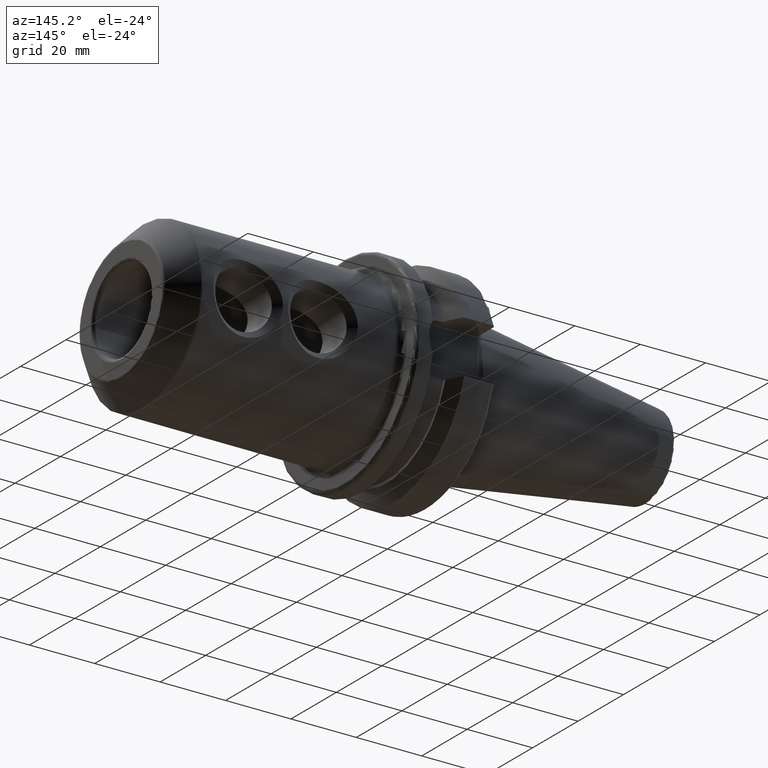
[diagram: clean part render]
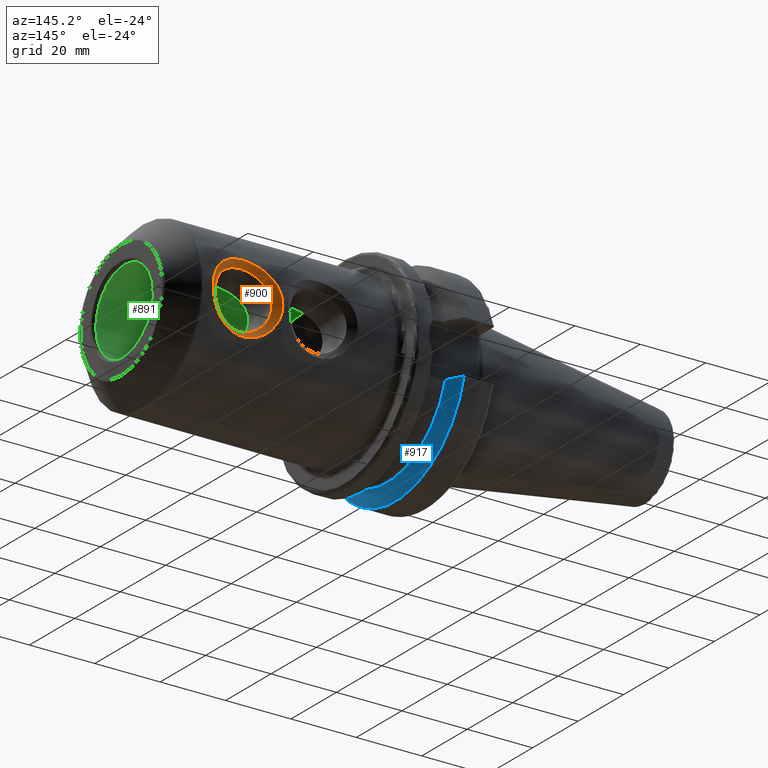
[diagram: same view with three faces highlighted in distinct colors, each labeled with its STEP entity id]
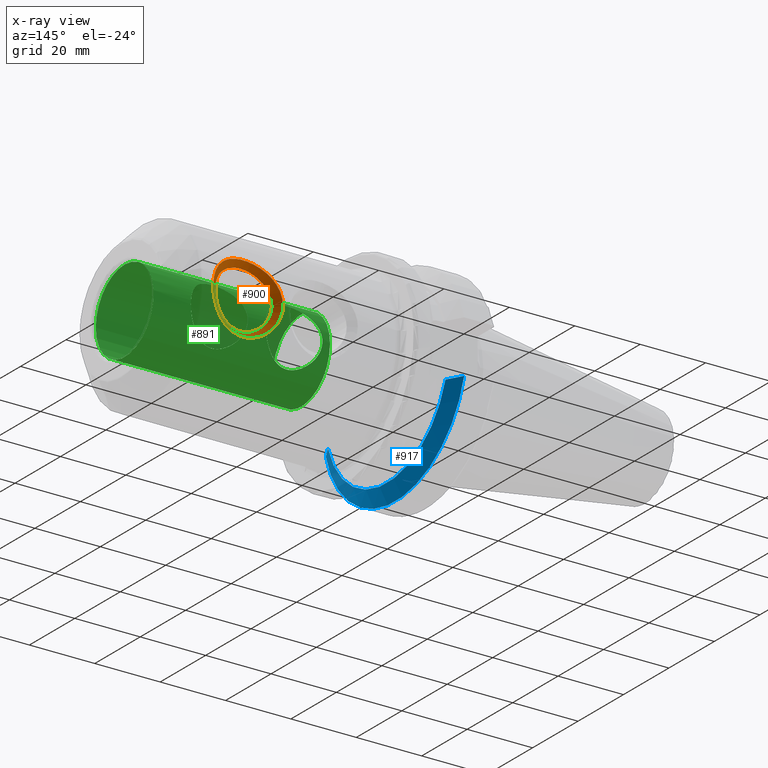
[diagram: x-ray of the same camera — body ghosted, the three highlighted faces saturated]
A machine part, auxiliary view with three faces highlighted in distinct colors.
The next image is the same camera in x-ray (body ghosted, the three faces saturated) — at least one of them is partly hidden behind the body in this view.
Their STEP definitions:

[orange] entity #900 — the highlighted face is a freeform B-spline surface patch.
#20=B_SPLINE_SURFACE_WITH_KNOTS('',3,3,((#1730,#1731,#1732,#1733,#1734,
#1735,#1736,#1737,#1738,#1739,#1740,#1741,#1742,#1743,#1744,#1745,#1746,
#1747,#1748,#1749,#1750,#1751,#1752,#1753,#1754,#1755,#1756,#1757,#1758,
#1759,#1760,#1761,#1762),(#1763,#1764,#1765,#1766,#1767,#1768,#1769,#1770,
#1771,#1772,#1773,#1774,#1775,#1776,#1777,#1778,#1779,#1780,#1781,#1782,
#1783,#1784,#1785,#1786,#1787,#1788,#1789,#1790,#1791,#1792,#1793,#1794,
#1795),(#1796,#1797,#1798,#1799,#1800,#1801,#1802,#1803,#1804,#1805,#1806,
#1807,#1808,#1809,#1810,#1811,#1812,#1813,#1814,#1815,#1816,#1817,#1818,
#1819,#1820,#1821,#1822,#1823,#1824,#1825,#1826,#1827,#1828),(#1829,#1830,
#1831,#1832,#1833,#1834,#1835,#1836,#1837,#1838,#1839,#1840,#1841,#1842,
#1843,#1844,#1845,#1846,#1847,#1848,#1849,#1850,#1851,#1852,#1853,#1854,
#1855,#1856,#1857,#1858,#1859,#1860,#1861)),.UNSPECIFIED.,.F.,.T.,.F.,(4,
4),(4,1,1,1,1,1,1,1,1,1,1,1,1,1,1,1,1,1,1,1,1,1,1,1,1,1,1,1,1,1,4),(0.,
1.),(3.94966474206138,4.13774401549287,4.32582328892437,4.51390256235586,
4.70198183578736,4.89006110921885,5.07814038265035,5.45429892951333,5.70507129408866,
5.95584365866399,5.9871902042359,6.08122984095165,6.20661602323931,6.45738838781464,
6.52008147895847,6.70816075238996,6.95893311696529,7.20970548154061,7.2880718454704,
7.33509166382828,7.46047784611594,7.71125021069127,7.83663639297893,7.96202257526659,
8.21279493984192,8.46356730441724,8.65164657784874,8.69866639620661,8.83972585128023,
9.02780512471173,9.21588439814322),.UNSPECIFIED.);
#34=B_SPLINE_CURVE_WITH_KNOTS('',3,(#1481,#1482,#1483,#1484,#1485,#1486,
#1487,#1488,#1489,#1490,#1491,#1492,#1493,#1494,#1495,#1496,#1497,#1498,
#1499,#1500,#1501,#1502,#1503,#1504,#1505,#1506,#1507,#1508,#1509,#1510,
#1511,#1512,#1513),.UNSPECIFIED.,.T.,.F.,(4,1,1,1,1,1,1,1,1,1,1,1,1,1,1,
1,1,1,1,1,1,1,1,1,1,1,1,1,1,1,4),(-9.21588439814322,-9.02780512471173,-8.83972585128023,
-8.69866639620661,-8.65164657784874,-8.46356730441724,-8.21279493984192,
-7.96202257526659,-7.83663639297893,-7.71125021069127,-7.46047784611594,
-7.33509166382828,-7.2880718454704,-7.20970548154061,-6.95893311696529,
-6.70816075238996,-6.52008147895847,-6.45738838781464,-6.20661602323931,
-6.08122984095165,-5.9871902042359,-5.95584365866399,-5.70507129408866,
-5.45429892951333,-5.07814038265035,-4.89006110921885,-4.70198183578736,
-4.51390256235586,-4.32582328892437,-4.13774401549287,-3.94966474206138),
 .UNSPECIFIED.);
#37=B_SPLINE_CURVE_WITH_KNOTS('',3,(#1864,#1865,#1866,#1867,#1868,#1869,
#1870,#1871,#1872,#1873,#1874,#1875,#1876,#1877,#1878,#1879,#1880,#1881,
#1882,#1883,#1884,#1885,#1886,#1887,#1888,#1889,#1890,#1891,#1892,#1893,
#1894,#1895,#1896),.UNSPECIFIED.,.T.,.F.,(4,1,1,1,1,1,1,1,1,1,1,1,1,1,1,
1,1,1,1,1,1,1,1,1,1,1,1,1,1,1,4),(3.94966474206138,4.13774401549287,4.32582328892437,
4.51390256235586,4.70198183578736,4.89006110921885,5.07814038265035,5.45429892951333,
5.70507129408866,5.95584365866399,5.9871902042359,6.08122984095165,6.20661602323931,
6.45738838781464,6.52008147895847,6.70816075238996,6.95893311696529,7.20970548154061,
7.2880718454704,7.33509166382828,7.46047784611594,7.71125021069127,7.83663639297893,
7.96202257526659,8.21279493984192,8.46356730441724,8.65164657784874,8.69866639620661,
8.83972585128023,9.02780512471173,9.21588439814322),.UNSPECIFIED.);
#58=LINE('',#1863,#105);
#105=VECTOR('',#1148,10.);
#204=FACE_OUTER_BOUND('',#265,.T.);
#265=EDGE_LOOP('',(#662,#663,#664,#665));
#395=VERTEX_POINT('',#1480);
#400=VERTEX_POINT('',#1862);
#491=EDGE_CURVE('',#395,#395,#34,.T.);
#499=EDGE_CURVE('',#395,#400,#58,.T.);
#500=EDGE_CURVE('',#400,#400,#37,.T.);
#662=ORIENTED_EDGE('',*,*,#499,.T.);
#663=ORIENTED_EDGE('',*,*,#500,.T.);
#664=ORIENTED_EDGE('',*,*,#499,.F.);
#665=ORIENTED_EDGE('',*,*,#491,.T.);
#900=ADVANCED_FACE('',(#204),#20,.T.);
#1148=DIRECTION('',(-0.707106781186546,-0.707106781186549,-4.9065389333868E-16));
#1480=CARTESIAN_POINT('',(84.8114,25.4,-7.21644966006352E-15));
#1481=CARTESIAN_POINT('Ctrl Pts',(84.8114,25.4,-7.21644966006352E-15));
#1482=CARTESIAN_POINT('Ctrl Pts',(84.8114,25.4,-0.771695247790118));
#1483=CARTESIAN_POINT('Ctrl Pts',(84.6401082566162,25.3271419450865,-2.37188038966957));
#1484=CARTESIAN_POINT('Ctrl Pts',(83.8944419594493,25.025289546063,-4.4880340040886));
#1485=CARTESIAN_POINT('Ctrl Pts',(83.0717138144954,24.7224200350604,-5.85722545037003));
#1486=CARTESIAN_POINT('Ctrl Pts',(82.1206191403792,24.3999453593658,-7.09293610328174));
#1487=CARTESIAN_POINT('Ctrl Pts',(80.7492033204407,23.976515653698,-8.44816226730065));
#1488=CARTESIAN_POINT('Ctrl Pts',(78.1600208106327,23.3839036047476,-9.94592933594146));
#1489=CARTESIAN_POINT('Ctrl Pts',(75.4524176520388,23.1156624855101,-10.5239449901476));
#1490=CARTESIAN_POINT('Ctrl Pts',(73.3713169364178,23.1180516912525,-10.5226646352614));
#1491=CARTESIAN_POINT('Ctrl Pts',(71.2232432814177,23.2544372922078,-10.2201076934102));
#1492=CARTESIAN_POINT('Ctrl Pts',(69.1662378337778,23.5975795939128,-9.4292276673494));
#1493=CARTESIAN_POINT('Ctrl Pts',(67.6911204406919,23.9629747313447,-8.43315894931356));
#1494=CARTESIAN_POINT('Ctrl Pts',(66.902359197366,24.183141145421,-7.77424506743996));
#1495=CARTESIAN_POINT('Ctrl Pts',(65.8288751479572,24.5057279498518,-6.7365406029634));
#1496=CARTESIAN_POINT('Ctrl Pts',(64.4041325493698,25.0188333118163,-4.72781676020789));
#1497=CARTESIAN_POINT('Ctrl Pts',(63.5213136589885,25.3865351150892,-1.82030760395837));
#1498=CARTESIAN_POINT('Ctrl Pts',(63.4508922396882,25.4155067959102,0.255220708889596));
#1499=CARTESIAN_POINT('Ctrl Pts',(63.6789940828855,25.3206375754429,2.35413768291682));
#1500=CARTESIAN_POINT('Ctrl Pts',(64.2463349183342,25.0851095317436,4.19664956010108));
#1501=CARTESIAN_POINT('Ctrl Pts',(65.2570141865083,24.7118166525908,5.91037741934658));
#1502=CARTESIAN_POINT('Ctrl Pts',(65.8996472621856,24.4944452054655,6.73134388762522));
#1503=CARTESIAN_POINT('Ctrl Pts',(66.9179681109717,24.1713636750482,7.84763239856454));
#1504=CARTESIAN_POINT('Ctrl Pts',(68.640945815733,23.6847220324185,9.23080671879955));
#1505=CARTESIAN_POINT('Ctrl Pts',(72.2752901305575,23.0811789073798,10.6116187057798));
#1506=CARTESIAN_POINT('Ctrl Pts',(75.752923758322,23.0849601041514,10.6005816187571));
#1507=CARTESIAN_POINT('Ctrl Pts',(78.8866060785757,23.544443997602,9.55593775184478));
#1508=CARTESIAN_POINT('Ctrl Pts',(80.9228001022128,24.0310604127738,8.26972084310511));
#1509=CARTESIAN_POINT('Ctrl Pts',(82.5244015609034,24.5237571216613,6.70048195353835));
#1510=CARTESIAN_POINT('Ctrl Pts',(83.8310825604845,24.9988741834674,4.67910679421235));
#1511=CARTESIAN_POINT('Ctrl Pts',(84.6373904624804,25.3264864820362,2.3728249188008));
#1512=CARTESIAN_POINT('Ctrl Pts',(84.8114,25.4,0.771695247789983));
#1513=CARTESIAN_POINT('Ctrl Pts',(84.8114,25.4,1.66533453693773E-15));
#1730=CARTESIAN_POINT('Ctrl Pts',(84.8114,25.4,1.66533453693773E-15));
#1731=CARTESIAN_POINT('Ctrl Pts',(84.8114,25.4,0.771695247789983));
#1732=CARTESIAN_POINT('Ctrl Pts',(84.6373904624804,25.3264864820362,2.3728249188008));
#1733=CARTESIAN_POINT('Ctrl Pts',(83.8310825604845,24.9988741834674,4.67910679421235));
#1734=CARTESIAN_POINT('Ctrl Pts',(82.5244015609034,24.5237571216613,6.70048195353835));
#1735=CARTESIAN_POINT('Ctrl Pts',(80.9228001022128,24.0310604127738,8.26972084310511));
#1736=CARTESIAN_POINT('Ctrl Pts',(78.8866060785757,23.544443997602,9.55593775184478));
#1737=CARTESIAN_POINT('Ctrl Pts',(75.752923758322,23.0849601041514,10.6005816187571));
#1738=CARTESIAN_POINT('Ctrl Pts',(72.2752901305575,23.0811789073798,10.6116187057798));
#1739=CARTESIAN_POINT('Ctrl Pts',(68.640945815733,23.6847220324185,9.23080671879955));
#1740=CARTESIAN_POINT('Ctrl Pts',(66.9179681109717,24.1713636750482,7.84763239856454));
#1741=CARTESIAN_POINT('Ctrl Pts',(65.8996472621856,24.4944452054655,6.73134388762522));
#1742=CARTESIAN_POINT('Ctrl Pts',(65.2570141865083,24.7118166525908,5.91037741934658));
#1743=CARTESIAN_POINT('Ctrl Pts',(64.2463349183342,25.0851095317436,4.19664956010108));
#1744=CARTESIAN_POINT('Ctrl Pts',(63.6789940828855,25.3206375754429,2.35413768291682));
#1745=CARTESIAN_POINT('Ctrl Pts',(63.4508922396882,25.4155067959102,0.255220708889596));
#1746=CARTESIAN_POINT('Ctrl Pts',(63.5213136589885,25.3865351150892,-1.82030760395837));
#1747=CARTESIAN_POINT('Ctrl Pts',(64.4041325493698,25.0188333118163,-4.72781676020789));
#1748=CARTESIAN_POINT('Ctrl Pts',(65.8288751479572,24.5057279498518,-6.7365406029634));
#1749=CARTESIAN_POINT('Ctrl Pts',(66.902359197366,24.183141145421,-7.77424506743996));
#1750=CARTESIAN_POINT('Ctrl Pts',(67.6911204406919,23.9629747313447,-8.43315894931356));
#1751=CARTESIAN_POINT('Ctrl Pts',(69.1662378337778,23.5975795939128,-9.4292276673494));
#1752=CARTESIAN_POINT('Ctrl Pts',(71.2232432814177,23.2544372922078,-10.2201076934102));
#1753=CARTESIAN_POINT('Ctrl Pts',(73.3713169364178,23.1180516912525,-10.5226646352614));
#1754=CARTESIAN_POINT('Ctrl Pts',(75.4524176520388,23.1156624855101,-10.5239449901476));
#1755=CARTESIAN_POINT('Ctrl Pts',(78.1600208106327,23.3839036047476,-9.94592933594146));
#1756=CARTESIAN_POINT('Ctrl Pts',(80.7492033204407,23.976515653698,-8.44816226730065));
#1757=CARTESIAN_POINT('Ctrl Pts',(82.1206191403792,24.3999453593658,-7.09293610328174));
#1758=CARTESIAN_POINT('Ctrl Pts',(83.0717138144954,24.7224200350604,-5.85722545037003));
#1759=CARTESIAN_POINT('Ctrl Pts',(83.8944419594493,25.025289546063,-4.4880340040886));
#1760=CARTESIAN_POINT('Ctrl Pts',(84.6401082566162,25.3271419450865,-2.37188038966957));
#1761=CARTESIAN_POINT('Ctrl Pts',(84.8114,25.4,-0.771695247790118));
#1762=CARTESIAN_POINT('Ctrl Pts',(84.8114,25.4,-7.21644966006352E-15));
#1763=CARTESIAN_POINT('Ctrl Pts',(84.1447333333333,24.7333333333333,1.20274161001059E-15));
#1764=CARTESIAN_POINT('Ctrl Pts',(84.1447333333333,24.7333333333333,0.706985589440789));
#1765=CARTESIAN_POINT('Ctrl Pts',(83.9889164542193,24.6694984481956,2.17387024774319));
#1766=CARTESIAN_POINT('Ctrl Pts',(83.2622798849475,24.3835319341697,4.30511998819473));
#1767=CARTESIAN_POINT('Ctrl Pts',(82.0678457020461,23.9646325224039,6.20290781905389));
#1768=CARTESIAN_POINT('Ctrl Pts',(80.5824519440376,23.5259528431179,7.70200006740606));
#1769=CARTESIAN_POINT('Ctrl Pts',(78.6683040403023,23.0891780323264,8.95063169503903));
#1770=CARTESIAN_POINT('Ctrl Pts',(75.6881559737288,22.6737472196897,9.98182148221185));
#1771=CARTESIAN_POINT('Ctrl Pts',(72.3507224652724,22.67038793601,9.99239168436786));
#1772=CARTESIAN_POINT('Ctrl Pts',(68.899028808134,23.2158578978369,8.63050812693269));
#1773=CARTESIAN_POINT('Ctrl Pts',(67.2911078730497,23.6510829666397,7.29715642533606));
#1774=CARTESIAN_POINT('Ctrl Pts',(66.3493123957151,23.9380228062768,6.23648723136024));
#1775=CARTESIAN_POINT('Ctrl Pts',(65.7578608150451,24.1305179667266,5.46066892950722));
#1776=CARTESIAN_POINT('Ctrl Pts',(64.8358729867371,24.4591269310092,3.85650587613041));
#1777=CARTESIAN_POINT('Ctrl Pts',(64.3260837480515,24.6643219538263,2.1579262078191));
#1778=CARTESIAN_POINT('Ctrl Pts',(64.121375466645,24.7468270205468,0.23332173322729));
#1779=CARTESIAN_POINT('Ctrl Pts',(64.1846069944514,24.7216582382555,-1.66607013698007));
#1780=CARTESIAN_POINT('Ctrl Pts',(64.9773165249302,24.4015022878749,-4.34584937196189));
#1781=CARTESIAN_POINT('Ctrl Pts',(66.281344514749,23.9485556441258,-6.23844686053119));
#1782=CARTESIAN_POINT('Ctrl Pts',(67.2783293100335,23.6611889931397,-7.22955936703753));
#1783=CARTESIAN_POINT('Ctrl Pts',(68.0139537328147,23.4646178129081,-7.86216819629985));
#1784=CARTESIAN_POINT('Ctrl Pts',(69.3979578003098,23.1370521897708,-8.82638444694205));
#1785=CARTESIAN_POINT('Ctrl Pts',(71.3514212639862,22.8270906113237,-9.605610220552));
#1786=CARTESIAN_POINT('Ctrl Pts',(73.4047990475314,22.7036046724471,-9.90525628366688));
#1787=CARTESIAN_POINT('Ctrl Pts',(75.3964379768674,22.7013742189176,-9.90699190718658));
#1788=CARTESIAN_POINT('Ctrl Pts',(77.9826486975009,22.9445172225667,-9.33258282243157));
#1789=CARTESIAN_POINT('Ctrl Pts',(80.4218616557574,23.4774966339374,-7.87201026086188));
#1790=CARTESIAN_POINT('Ctrl Pts',(81.6932258386579,23.854356345432,-6.57799351481316));
#1791=CARTESIAN_POINT('Ctrl Pts',(82.5682733717007,24.1398165565792,-5.41108628932577));
#1792=CARTESIAN_POINT('Ctrl Pts',(83.319164534894,24.4065481820072,-4.12872256788278));
#1793=CARTESIAN_POINT('Ctrl Pts',(83.9915188561255,24.6701005937367,-2.17287216367464));
#1794=CARTESIAN_POINT('Ctrl Pts',(84.1447333333333,24.7333333333333,-0.706985589440865));
#1795=CARTESIAN_POINT('Ctrl Pts',(84.1447333333333,24.7333333333333,-6.10622663543836E-15));
#1796=CARTESIAN_POINT('Ctrl Pts',(83.4780666666667,24.0666666666667,7.40148683083438E-16));
#1797=CARTESIAN_POINT('Ctrl Pts',(83.4780666666667,24.0666666666667,0.642275931091596));
#1798=CARTESIAN_POINT('Ctrl Pts',(83.3404424459581,24.0125104143551,1.97491557668557));
#1799=CARTESIAN_POINT('Ctrl Pts',(82.6934772094106,23.7681896848721,3.93113318217711));
#1800=CARTESIAN_POINT('Ctrl Pts',(81.6112898431888,23.4055079231464,5.70533368456943));
#1801=CARTESIAN_POINT('Ctrl Pts',(80.2421037858623,23.020845273462,7.13427929170701));
#1802=CARTESIAN_POINT('Ctrl Pts',(78.4500020020289,22.6339120670508,8.34532563823329));
#1803=CARTESIAN_POINT('Ctrl Pts',(75.6233881891357,22.262534335228,9.36306134566663));
#1804=CARTESIAN_POINT('Ctrl Pts',(72.4261547999872,22.2595969646403,9.37316466295593));
#1805=CARTESIAN_POINT('Ctrl Pts',(69.1571118005349,22.7469937632552,8.03020953506582));
#1806=CARTESIAN_POINT('Ctrl Pts',(67.6642476351277,23.1308022582313,6.74668045210757));
#1807=CARTESIAN_POINT('Ctrl Pts',(66.7989775292446,23.3816004070881,5.74163057509527));
#1808=CARTESIAN_POINT('Ctrl Pts',(66.2587074435819,23.5492192808623,5.01096043966787));
#1809=CARTESIAN_POINT('Ctrl Pts',(65.42541105514,23.8331443302748,3.51636219215974));
#1810=CARTESIAN_POINT('Ctrl Pts',(64.9731734132176,24.0080063322096,1.96171473272139));
#1811=CARTESIAN_POINT('Ctrl Pts',(64.7918586936018,24.0781472451834,0.211422757564986));
#1812=CARTESIAN_POINT('Ctrl Pts',(64.8479003299145,24.0567813614217,-1.51183267000177));
#1813=CARTESIAN_POINT('Ctrl Pts',(65.5505005004906,23.7841712639336,-3.96388198371588));
#1814=CARTESIAN_POINT('Ctrl Pts',(66.7338138815409,23.3913833383997,-5.74035311809898));
#1815=CARTESIAN_POINT('Ctrl Pts',(67.654299422701,23.1392368408585,-6.68487366663509));
#1816=CARTESIAN_POINT('Ctrl Pts',(68.3367870249375,22.9662608944715,-7.29117744328614));
#1817=CARTESIAN_POINT('Ctrl Pts',(69.6296777668418,22.6765247856288,-8.22354122653469));
#1818=CARTESIAN_POINT('Ctrl Pts',(71.4795992465547,22.3997439304396,-8.99111274769384));
#1819=CARTESIAN_POINT('Ctrl Pts',(73.4382811586449,22.2891576536418,-9.28784793207233));
#1820=CARTESIAN_POINT('Ctrl Pts',(75.340458301696,22.2870859523252,-9.29003882422558));
#1821=CARTESIAN_POINT('Ctrl Pts',(77.8052765843692,22.5051308403859,-8.71923630892168));
#1822=CARTESIAN_POINT('Ctrl Pts',(80.0945199910741,22.9784776141768,-7.29585825442311));
#1823=CARTESIAN_POINT('Ctrl Pts',(81.2658325369366,23.3087673314981,-6.06305092634457));
#1824=CARTESIAN_POINT('Ctrl Pts',(82.064832928906,23.557213078098,-4.96494712828151));
#1825=CARTESIAN_POINT('Ctrl Pts',(82.7438871103386,23.7878068179513,-3.76941113167697));
#1826=CARTESIAN_POINT('Ctrl Pts',(83.3429294556348,24.0130592423868,-1.9738639376797));
#1827=CARTESIAN_POINT('Ctrl Pts',(83.4780666666667,24.0666666666667,-0.642275931091618));
#1828=CARTESIAN_POINT('Ctrl Pts',(83.4780666666667,24.0666666666667,-4.9960036108132E-15));
#1829=CARTESIAN_POINT('Ctrl Pts',(82.8114,23.4,2.77555756156289E-16));
#1830=CARTESIAN_POINT('Ctrl Pts',(82.8114,23.4,0.577566272742402));
#1831=CARTESIAN_POINT('Ctrl Pts',(82.6919684376969,23.3555223805146,1.77596090562796));
#1832=CARTESIAN_POINT('Ctrl Pts',(82.1246745338737,23.1528474355745,3.55714637615949));
#1833=CARTESIAN_POINT('Ctrl Pts',(81.1547339843315,22.846383323889,5.20775955008497));
#1834=CARTESIAN_POINT('Ctrl Pts',(79.9017556276871,22.515737703806,6.56655851600796));
#1835=CARTESIAN_POINT('Ctrl Pts',(78.2316999637554,22.1786461017752,7.74001958142753));
#1836=CARTESIAN_POINT('Ctrl Pts',(75.5586204045425,21.8513214507663,8.74430120912142));
#1837=CARTESIAN_POINT('Ctrl Pts',(72.5015871347021,21.8488059932705,8.75393764154399));
#1838=CARTESIAN_POINT('Ctrl Pts',(69.4151947929359,22.2781296286735,7.42991094319896));
#1839=CARTESIAN_POINT('Ctrl Pts',(68.0373873972058,22.6105215498228,6.19620447887909));
#1840=CARTESIAN_POINT('Ctrl Pts',(67.2486426627742,22.8251780078994,5.24677391883029));
#1841=CARTESIAN_POINT('Ctrl Pts',(66.7595540721187,22.9679205949981,4.56125194982851));
#1842=CARTESIAN_POINT('Ctrl Pts',(66.014949123543,23.2071617295404,3.17621850818906));
#1843=CARTESIAN_POINT('Ctrl Pts',(65.6202630783837,23.351690710593,1.76550325762367));
#1844=CARTESIAN_POINT('Ctrl Pts',(65.4623419205586,23.40946746982,0.18952378190268));
#1845=CARTESIAN_POINT('Ctrl Pts',(65.5111936653775,23.391904484588,-1.35759520302346));
#1846=CARTESIAN_POINT('Ctrl Pts',(66.123684476051,23.1668402399923,-3.58191459546988));
#1847=CARTESIAN_POINT('Ctrl Pts',(67.1862832483327,22.8342110326736,-5.24225937566676));
#1848=CARTESIAN_POINT('Ctrl Pts',(68.0302695353686,22.6172846885772,-6.14018796623265));
#1849=CARTESIAN_POINT('Ctrl Pts',(68.6596203170603,22.4679039760349,-6.72018669027242));
#1850=CARTESIAN_POINT('Ctrl Pts',(69.8613977333738,22.2159973814869,-7.62069800612734));
#1851=CARTESIAN_POINT('Ctrl Pts',(71.6077772291232,21.9723972495555,-8.37661527483568));
#1852=CARTESIAN_POINT('Ctrl Pts',(73.4717632697585,21.8747106348365,-8.67043958047778));
#1853=CARTESIAN_POINT('Ctrl Pts',(75.2844786265246,21.8727976857328,-8.67308574126457));
#1854=CARTESIAN_POINT('Ctrl Pts',(77.6279044712373,22.0657444582051,-8.1058897954118));
#1855=CARTESIAN_POINT('Ctrl Pts',(79.7671783263908,22.4794585944162,-6.71970624798434));
#1856=CARTESIAN_POINT('Ctrl Pts',(80.8384392352152,22.7631783175642,-5.54810833787598));
#1857=CARTESIAN_POINT('Ctrl Pts',(81.5613924861112,22.9746095996168,-4.51880796723725));
#1858=CARTESIAN_POINT('Ctrl Pts',(82.1686096857833,23.1690654538955,-3.41009969547115));
#1859=CARTESIAN_POINT('Ctrl Pts',(82.6943400551442,23.3560178910369,-1.77485571168477));
#1860=CARTESIAN_POINT('Ctrl Pts',(82.8114,23.4,-0.577566272742364));
#1861=CARTESIAN_POINT('Ctrl Pts',(82.8114,23.4,-3.88578058618805E-15));
#1862=CARTESIAN_POINT('',(82.8114,23.4,2.77555756156289E-16));
#1863=CARTESIAN_POINT('',(84.8114,25.4,1.66533453693773E-15));
#1864=CARTESIAN_POINT('Ctrl Pts',(82.8114,23.4,2.77555756156289E-16));
#1865=CARTESIAN_POINT('Ctrl Pts',(82.8114,23.4,0.577566272742402));
#1866=CARTESIAN_POINT('Ctrl Pts',(82.6919684376969,23.3555223805146,1.77596090562796));
#1867=CARTESIAN_POINT('Ctrl Pts',(82.1246745338737,23.1528474355745,3.55714637615949));
#1868=CARTESIAN_POINT('Ctrl Pts',(81.1547339843315,22.846383323889,5.20775955008497));
#1869=CARTESIAN_POINT('Ctrl Pts',(79.9017556276871,22.515737703806,6.56655851600796));
#1870=CARTESIAN_POINT('Ctrl Pts',(78.2316999637554,22.1786461017752,7.74001958142753));
#1871=CARTESIAN_POINT('Ctrl Pts',(75.5586204045425,21.8513214507663,8.74430120912142));
#1872=CARTESIAN_POINT('Ctrl Pts',(72.5015871347021,21.8488059932705,8.75393764154399));
#1873=CARTESIAN_POINT('Ctrl Pts',(69.4151947929359,22.2781296286735,7.42991094319896));
#1874=CARTESIAN_POINT('Ctrl Pts',(68.0373873972058,22.6105215498228,6.19620447887909));
#1875=CARTESIAN_POINT('Ctrl Pts',(67.2486426627742,22.8251780078994,5.24677391883029));
#1876=CARTESIAN_POINT('Ctrl Pts',(66.7595540721187,22.9679205949981,4.56125194982851));
#1877=CARTESIAN_POINT('Ctrl Pts',(66.014949123543,23.2071617295404,3.17621850818906));
#1878=CARTESIAN_POINT('Ctrl Pts',(65.6202630783837,23.351690710593,1.76550325762367));
#1879=CARTESIAN_POINT('Ctrl Pts',(65.4623419205586,23.40946746982,0.18952378190268));
#1880=CARTESIAN_POINT('Ctrl Pts',(65.5111936653775,23.391904484588,-1.35759520302346));
#1881=CARTESIAN_POINT('Ctrl Pts',(66.123684476051,23.1668402399923,-3.58191459546988));
#1882=CARTESIAN_POINT('Ctrl Pts',(67.1862832483327,22.8342110326736,-5.24225937566676));
#1883=CARTESIAN_POINT('Ctrl Pts',(68.0302695353686,22.6172846885772,-6.14018796623265));
#1884=CARTESIAN_POINT('Ctrl Pts',(68.6596203170603,22.4679039760349,-6.72018669027242));
#1885=CARTESIAN_POINT('Ctrl Pts',(69.8613977333738,22.2159973814869,-7.62069800612734));
#1886=CARTESIAN_POINT('Ctrl Pts',(71.6077772291232,21.9723972495555,-8.37661527483568));
#1887=CARTESIAN_POINT('Ctrl Pts',(73.4717632697585,21.8747106348365,-8.67043958047778));
#1888=CARTESIAN_POINT('Ctrl Pts',(75.2844786265246,21.8727976857328,-8.67308574126457));
#1889=CARTESIAN_POINT('Ctrl Pts',(77.6279044712373,22.0657444582051,-8.1058897954118));
#1890=CARTESIAN_POINT('Ctrl Pts',(79.7671783263908,22.4794585944162,-6.71970624798434));
#1891=CARTESIAN_POINT('Ctrl Pts',(80.8384392352152,22.7631783175642,-5.54810833787598));
#1892=CARTESIAN_POINT('Ctrl Pts',(81.5613924861112,22.9746095996168,-4.51880796723725));
#1893=CARTESIAN_POINT('Ctrl Pts',(82.1686096857833,23.1690654538955,-3.41009969547115));
#1894=CARTESIAN_POINT('Ctrl Pts',(82.6943400551442,23.3560178910369,-1.77485571168477));
#1895=CARTESIAN_POINT('Ctrl Pts',(82.8114,23.4,-0.577566272742364));
#1896=CARTESIAN_POINT('Ctrl Pts',(82.8114,23.4,-3.88578058618805E-15));

[blue] entity #917 — the highlighted conical surface has half-angle 60.125 deg.
#16=(
BOUNDED_CURVE()
B_SPLINE_CURVE(2,(#2019,#2020,#2021),.UNSPECIFIED.,.F.,.F.)
B_SPLINE_CURVE_WITH_KNOTS((3,3),(0.,0.52358279083281),.UNSPECIFIED.)
CURVE()
GEOMETRIC_REPRESENTATION_ITEM()
RATIONAL_B_SPLINE_CURVE((1.,1.00307360097546,1.))
REPRESENTATION_ITEM('')
);
#17=(
BOUNDED_CURVE()
B_SPLINE_CURVE(2,(#2076,#2077,#2078),.UNSPECIFIED.,.F.,.F.)
B_SPLINE_CURVE_WITH_KNOTS((3,3),(0.,0.52358279083281),.UNSPECIFIED.)
CURVE()
GEOMETRIC_REPRESENTATION_ITEM()
RATIONAL_B_SPLINE_CURVE((1.,1.00307360097546,1.))
REPRESENTATION_ITEM('')
);
#24=CONICAL_SURFACE('',#1027,29.2970358274569,1.0493792127616);
#221=FACE_OUTER_BOUND('',#285,.T.);
#285=EDGE_LOOP('',(#747,#748,#749,#750));
#348=CIRCLE('',#1026,27.0940716549138);
#349=CIRCLE('',#1028,31.5000000000001);
#428=VERTEX_POINT('',#2016);
#429=VERTEX_POINT('',#2018);
#438=VERTEX_POINT('',#2070);
#439=VERTEX_POINT('',#2074);
#534=EDGE_CURVE('',#429,#428,#16,.T.);
#550=EDGE_CURVE('',#429,#438,#348,.T.);
#552=EDGE_CURVE('',#428,#439,#349,.T.);
#553=EDGE_CURVE('',#439,#438,#17,.T.);
#747=ORIENTED_EDGE('',*,*,#534,.T.);
#748=ORIENTED_EDGE('',*,*,#552,.T.);
#749=ORIENTED_EDGE('',*,*,#553,.T.);
#750=ORIENTED_EDGE('',*,*,#550,.F.);
#917=ADVANCED_FACE('',(#221),#24,.T.);
#1026=AXIS2_PLACEMENT_3D('',#2071,#1231,#1232);
#1027=AXIS2_PLACEMENT_3D('',#2073,#1234,#1235);
#1028=AXIS2_PLACEMENT_3D('',#2075,#1236,#1237);
#1231=DIRECTION('center_axis',(1.,0.,0.));
#1232=DIRECTION('ref_axis',(0.,0.,-1.));
#1234=DIRECTION('center_axis',(-1.,0.,0.));
#1235=DIRECTION('ref_axis',(0.,1.,0.));
#1236=DIRECTION('center_axis',(1.,0.,0.));
#1237=DIRECTION('ref_axis',(0.,0.,-1.));
#2016=CARTESIAN_POINT('',(11.5690363073382,-30.4540227227866,-8.05));
#2018=CARTESIAN_POINT('',(14.1,-25.8705666509569,-8.05));
#2019=CARTESIAN_POINT('Ctrl Pts',(14.1,-25.8705666509569,-8.05));
#2020=CARTESIAN_POINT('Ctrl Pts',(12.9374976962938,-27.989970265181,-8.05));
#2021=CARTESIAN_POINT('Ctrl Pts',(11.5690363073382,-30.4540227227866,-8.05));
#2070=CARTESIAN_POINT('',(14.1,25.8705666509569,-8.05));
#2071=CARTESIAN_POINT('Origin',(14.1,0.,0.));
#2073=CARTESIAN_POINT('Origin',(12.8345181536691,0.,0.));
#2074=CARTESIAN_POINT('',(11.5690363073382,30.4540227227866,-8.05));
#2075=CARTESIAN_POINT('Origin',(11.5690363073382,0.,0.));
#2076=CARTESIAN_POINT('Ctrl Pts',(11.5690363073382,30.4540227227866,-8.05));
#2077=CARTESIAN_POINT('Ctrl Pts',(12.9374976962938,27.989970265181,-8.05));
#2078=CARTESIAN_POINT('Ctrl Pts',(14.1,25.8705666509569,-8.05));

[green] entity #891 — the highlighted cylindrical surface (bore or boss wall) has radius 12.7 mm, axis along (1, 0, 0).
#30=B_SPLINE_CURVE_WITH_KNOTS('',3,(#1382,#1383,#1384,#1385,#1386,#1387,
#1388,#1389,#1390,#1391),.UNSPECIFIED.,.F.,.F.,(4,2,2,2,4),(0.,0.342831187342052,
0.685662374684104,1.02424067190905,1.36281896913399),.UNSPECIFIED.);
#31=B_SPLINE_CURVE_WITH_KNOTS('',3,(#1392,#1393,#1394,#1395,#1396,#1397,
#1398,#1399,#1400,#1401,#1402,#1403,#1404,#1405,#1406,#1407,#1408,#1409,
#1410,#1411,#1412,#1413,#1414,#1415,#1416,#1417),.UNSPECIFIED.,.F.,.F.,
(4,2,2,2,2,2,2,2,2,2,2,2,4),(1.36281896913399,1.70139726635893,2.03997556358388,
2.38280675092593,2.72563793826798,3.06846912561003,3.41130031295208,3.74987861017703,
4.08845690740197,4.42703520462691,4.76561350185186,5.10844468919391,5.45127587653596),
 .UNSPECIFIED.);
#32=B_SPLINE_CURVE_WITH_KNOTS('',3,(#1420,#1421,#1422,#1423,#1424,#1425,
#1426,#1427,#1428,#1429),.UNSPECIFIED.,.F.,.F.,(4,2,2,2,4),(0.,0.342831187342052,
0.685662374684103,1.02424067190905,1.36281896913399),.UNSPECIFIED.);
#33=B_SPLINE_CURVE_WITH_KNOTS('',3,(#1430,#1431,#1432,#1433,#1434,#1435,
#1436,#1437,#1438,#1439,#1440,#1441,#1442,#1443,#1444,#1445,#1446,#1447,
#1448,#1449,#1450,#1451,#1452,#1453,#1454,#1455),.UNSPECIFIED.,.F.,.F.,
(4,2,2,2,2,2,2,2,2,2,2,2,4),(1.36281896913399,1.70139726635893,2.03997556358388,
2.38280675092593,2.72563793826798,3.06846912561003,3.41130031295208,3.74987861017703,
4.08845690740197,4.42703520462691,4.76561350185186,5.10844468919391,5.45127587653596),
 .UNSPECIFIED.);
#53=LINE('',#1378,#100);
#100=VECTOR('',#1101,12.7);
#147=CYLINDRICAL_SURFACE('',#974,12.7);
#164=FACE_BOUND('',#252,.T.);
#165=FACE_BOUND('',#253,.T.);
#195=FACE_OUTER_BOUND('',#251,.T.);
#251=EDGE_LOOP('',(#612,#613,#614,#615,#616));
#252=EDGE_LOOP('',(#617,#618));
#253=EDGE_LOOP('',(#619,#620));
#315=CIRCLE('',#968,12.7);
#316=CIRCLE('',#969,12.7);
#320=CIRCLE('',#975,12.7);
#378=VERTEX_POINT('',#1366);
#379=VERTEX_POINT('',#1367);
#382=VERTEX_POINT('',#1377);
#383=VERTEX_POINT('',#1380);
#384=VERTEX_POINT('',#1381);
#385=VERTEX_POINT('',#1418);
#386=VERTEX_POINT('',#1419);
#468=EDGE_CURVE('',#378,#379,#315,.T.);
#469=EDGE_CURVE('',#379,#378,#316,.T.);
#473=EDGE_CURVE('',#379,#382,#53,.T.);
#474=EDGE_CURVE('',#382,#382,#320,.T.);
#475=EDGE_CURVE('',#383,#384,#30,.T.);
#476=EDGE_CURVE('',#384,#383,#31,.T.);
#477=EDGE_CURVE('',#385,#386,#32,.T.);
#478=EDGE_CURVE('',#386,#385,#33,.T.);
#612=ORIENTED_EDGE('',*,*,#468,.F.);
#613=ORIENTED_EDGE('',*,*,#469,.F.);
#614=ORIENTED_EDGE('',*,*,#473,.T.);
#615=ORIENTED_EDGE('',*,*,#474,.F.);
#616=ORIENTED_EDGE('',*,*,#473,.F.);
#617=ORIENTED_EDGE('',*,*,#475,.T.);
#618=ORIENTED_EDGE('',*,*,#476,.T.);
#619=ORIENTED_EDGE('',*,*,#477,.T.);
#620=ORIENTED_EDGE('',*,*,#478,.T.);
#891=ADVANCED_FACE('',(#195,#164,#165),#147,.F.);
#968=AXIS2_PLACEMENT_3D('',#1368,#1087,#1088);
#969=AXIS2_PLACEMENT_3D('',#1369,#1089,#1090);
#974=AXIS2_PLACEMENT_3D('',#1376,#1099,#1100);
#975=AXIS2_PLACEMENT_3D('',#1379,#1102,#1103);
#1087=DIRECTION('center_axis',(-1.,0.,0.));
#1088=DIRECTION('ref_axis',(0.,-1.,1.83697019872103E-16));
#1089=DIRECTION('center_axis',(-1.,0.,0.));
#1090=DIRECTION('ref_axis',(0.,-1.,1.83697019872103E-16));
#1099=DIRECTION('center_axis',(1.,0.,0.));
#1100=DIRECTION('ref_axis',(0.,1.,0.));
#1101=DIRECTION('',(-1.,0.,0.));
#1102=DIRECTION('center_axis',(1.,0.,0.));
#1103=DIRECTION('ref_axis',(0.,0.,-1.));
#1366=CARTESIAN_POINT('',(94.25,-1.55530143491714E-15,12.7));
#1367=CARTESIAN_POINT('',(94.25,-12.7,-1.55530143491714E-15));
#1368=CARTESIAN_POINT('Origin',(94.25,0.,0.));
#1369=CARTESIAN_POINT('Origin',(94.25,0.,0.));
#1376=CARTESIAN_POINT('Origin',(67.75,0.,0.));
#1377=CARTESIAN_POINT('',(40.25,-12.7,-1.55530143491714E-15));
#1378=CARTESIAN_POINT('',(67.75,-12.7,-1.55530143491714E-15));
#1379=CARTESIAN_POINT('Origin',(40.25,0.,0.));
#1380=CARTESIAN_POINT('',(74.15,9.28817258883576,8.6614));
#1381=CARTESIAN_POINT('',(82.8114,12.7,1.63531601083979E-16));
#1382=CARTESIAN_POINT('Ctrl Pts',(74.15,9.28817258883576,8.6614));
#1383=CARTESIAN_POINT('Ctrl Pts',(75.2927706244735,9.28817258883576,8.6614));
#1384=CARTESIAN_POINT('Ctrl Pts',(76.4631925798569,9.52028980979605,8.42510703939285));
#1385=CARTESIAN_POINT('Ctrl Pts',(78.5748186480471,10.2403122930747,7.53354592798));
#1386=CARTESIAN_POINT('Ctrl Pts',(79.5215110112521,10.7111190531903,6.87755833788624));
#1387=CARTESIAN_POINT('Ctrl Pts',(81.0182169272623,11.5350374541816,5.38085242187607));
#1388=CARTESIAN_POINT('Ctrl Pts',(81.6802869359934,11.9523850753063,4.43227008771077));
#1389=CARTESIAN_POINT('Ctrl Pts',(82.5777674149023,12.5372065673924,2.30715875855383));
#1390=CARTESIAN_POINT('Ctrl Pts',(82.8114,12.7,1.12859432408315));
#1391=CARTESIAN_POINT('Ctrl Pts',(82.8114,12.7,8.32667268468867E-16));
#1392=CARTESIAN_POINT('Ctrl Pts',(82.8114,12.7,1.11022302462516E-15));
#1393=CARTESIAN_POINT('Ctrl Pts',(82.8114,12.7,-1.12859432408314));
#1394=CARTESIAN_POINT('Ctrl Pts',(82.5777674149023,12.5372065673924,-2.30715875855382));
#1395=CARTESIAN_POINT('Ctrl Pts',(81.6802869359934,11.9523850753063,-4.43227008771076));
#1396=CARTESIAN_POINT('Ctrl Pts',(81.0182169272623,11.5350374541816,-5.38085242187607));
#1397=CARTESIAN_POINT('Ctrl Pts',(79.5215110112521,10.7111190531903,-6.87755833788623));
#1398=CARTESIAN_POINT('Ctrl Pts',(78.5748186480471,10.2403122930747,-7.53354592798));
#1399=CARTESIAN_POINT('Ctrl Pts',(76.4631925798569,9.52028980979605,-8.42510703939285));
#1400=CARTESIAN_POINT('Ctrl Pts',(75.2927706244735,9.28817258883576,-8.6614));
#1401=CARTESIAN_POINT('Ctrl Pts',(73.0072293755265,9.28817258883576,-8.6614));
#1402=CARTESIAN_POINT('Ctrl Pts',(71.8368074201431,9.52028980979605,-8.42510703939285));
#1403=CARTESIAN_POINT('Ctrl Pts',(69.7251813519529,10.2403122930747,-7.53354592798));
#1404=CARTESIAN_POINT('Ctrl Pts',(68.7784889887479,10.7111190531903,-6.87755833788623));
#1405=CARTESIAN_POINT('Ctrl Pts',(67.2817830727377,11.5350374541816,-5.38085242187607));
#1406=CARTESIAN_POINT('Ctrl Pts',(66.6197130640066,11.9523850753063,-4.43227008771077));
#1407=CARTESIAN_POINT('Ctrl Pts',(65.7222325850977,12.5372065673924,-2.30715875855382));
#1408=CARTESIAN_POINT('Ctrl Pts',(65.4886,12.7,-1.12859432408315));
#1409=CARTESIAN_POINT('Ctrl Pts',(65.4886,12.7,1.12859432408314));
#1410=CARTESIAN_POINT('Ctrl Pts',(65.7222325850977,12.5372065673924,2.30715875855382));
#1411=CARTESIAN_POINT('Ctrl Pts',(66.6197130640066,11.9523850753063,4.43227008771076));
#1412=CARTESIAN_POINT('Ctrl Pts',(67.2817830727377,11.5350374541816,5.38085242187607));
#1413=CARTESIAN_POINT('Ctrl Pts',(68.7784889887479,10.7111190531903,6.87755833788623));
#1414=CARTESIAN_POINT('Ctrl Pts',(69.7251813519529,10.2403122930747,7.53354592798));
#1415=CARTESIAN_POINT('Ctrl Pts',(71.8368074201431,9.52028980979605,8.42510703939285));
#1416=CARTESIAN_POINT('Ctrl Pts',(73.0072293755265,9.28817258883576,8.6614));
#1417=CARTESIAN_POINT('Ctrl Pts',(74.15,9.28817258883576,8.6614));
#1418=CARTESIAN_POINT('',(51.25,9.28817258883576,8.6614));
#1419=CARTESIAN_POINT('',(59.9114,12.7,-1.14024155072311E-16));
#1420=CARTESIAN_POINT('Ctrl Pts',(51.25,9.28817258883576,8.6614));
#1421=CARTESIAN_POINT('Ctrl Pts',(52.3927706244735,9.28817258883576,8.6614));
#1422=CARTESIAN_POINT('Ctrl Pts',(53.5631925798569,9.52028980979604,8.42510703939285));
#1423=CARTESIAN_POINT('Ctrl Pts',(55.6748186480471,10.2403122930747,7.53354592798));
#1424=CARTESIAN_POINT('Ctrl Pts',(56.6215110112521,10.7111190531903,6.87755833788624));
#1425=CARTESIAN_POINT('Ctrl Pts',(58.1182169272623,11.5350374541816,5.38085242187608));
#1426=CARTESIAN_POINT('Ctrl Pts',(58.7802869359934,11.9523850753063,4.43227008771077));
#1427=CARTESIAN_POINT('Ctrl Pts',(59.6777674149023,12.5372065673924,2.30715875855383));
#1428=CARTESIAN_POINT('Ctrl Pts',(59.9114,12.7,1.12859432408314));
#1429=CARTESIAN_POINT('Ctrl Pts',(59.9114,12.7,0.));
#1430=CARTESIAN_POINT('Ctrl Pts',(59.9114,12.7,1.11022302462516E-15));
#1431=CARTESIAN_POINT('Ctrl Pts',(59.9114,12.7,-1.12859432408314));
#1432=CARTESIAN_POINT('Ctrl Pts',(59.6777674149023,12.5372065673924,-2.30715875855382));
#1433=CARTESIAN_POINT('Ctrl Pts',(58.7802869359934,11.9523850753063,-4.43227008771077));
#1434=CARTESIAN_POINT('Ctrl Pts',(58.1182169272623,11.5350374541816,-5.38085242187607));
#1435=CARTESIAN_POINT('Ctrl Pts',(56.6215110112521,10.7111190531903,-6.87755833788624));
#1436=CARTESIAN_POINT('Ctrl Pts',(55.6748186480471,10.2403122930747,-7.53354592798));
#1437=CARTESIAN_POINT('Ctrl Pts',(53.5631925798569,9.52028980979604,-8.42510703939285));
#1438=CARTESIAN_POINT('Ctrl Pts',(52.3927706244735,9.28817258883576,-8.6614));
#1439=CARTESIAN_POINT('Ctrl Pts',(50.1072293755265,9.28817258883576,-8.6614));
#1440=CARTESIAN_POINT('Ctrl Pts',(48.9368074201431,9.52028980979604,-8.42510703939285));
#1441=CARTESIAN_POINT('Ctrl Pts',(46.8251813519529,10.2403122930747,-7.53354592798001));
#1442=CARTESIAN_POINT('Ctrl Pts',(45.8784889887479,10.7111190531903,-6.87755833788624));
#1443=CARTESIAN_POINT('Ctrl Pts',(44.3817830727377,11.5350374541816,-5.38085242187608));
#1444=CARTESIAN_POINT('Ctrl Pts',(43.7197130640066,11.9523850753063,-4.43227008771077));
#1445=CARTESIAN_POINT('Ctrl Pts',(42.8222325850977,12.5372065673924,-2.30715875855383));
#1446=CARTESIAN_POINT('Ctrl Pts',(42.5886,12.7,-1.12859432408315));
#1447=CARTESIAN_POINT('Ctrl Pts',(42.5886,12.7,1.12859432408314));
#1448=CARTESIAN_POINT('Ctrl Pts',(42.8222325850977,12.5372065673924,2.30715875855382));
#1449=CARTESIAN_POINT('Ctrl Pts',(43.7197130640066,11.9523850753063,4.43227008771076));
#1450=CARTESIAN_POINT('Ctrl Pts',(44.3817830727377,11.5350374541816,5.38085242187607));
#1451=CARTESIAN_POINT('Ctrl Pts',(45.8784889887479,10.7111190531903,6.87755833788624));
#1452=CARTESIAN_POINT('Ctrl Pts',(46.8251813519529,10.2403122930747,7.53354592798));
#1453=CARTESIAN_POINT('Ctrl Pts',(48.9368074201431,9.52028980979604,8.42510703939285));
#1454=CARTESIAN_POINT('Ctrl Pts',(50.1072293755265,9.28817258883576,8.6614));
#1455=CARTESIAN_POINT('Ctrl Pts',(51.25,9.28817258883576,8.6614));